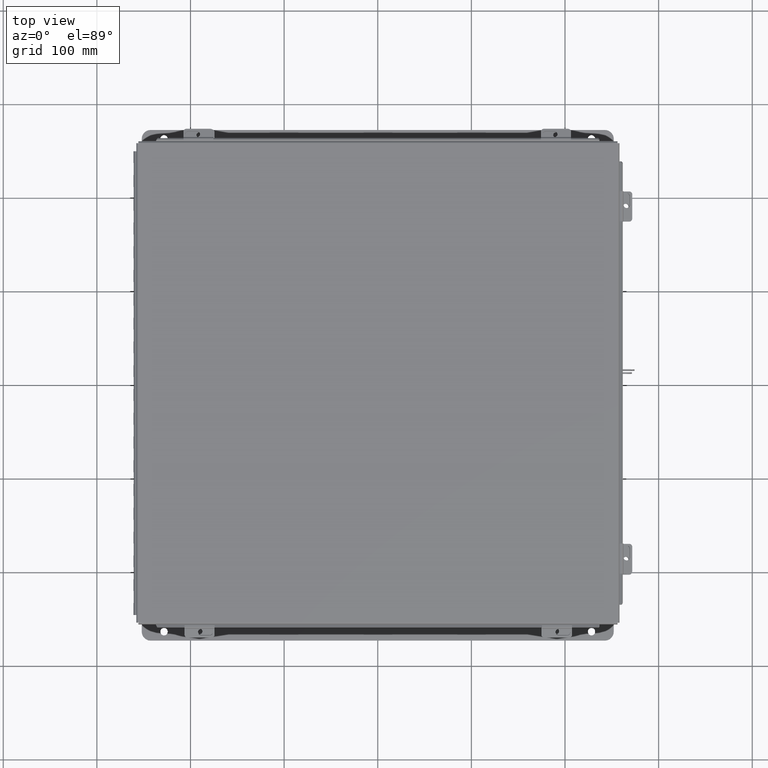
[diagram: clean part render]
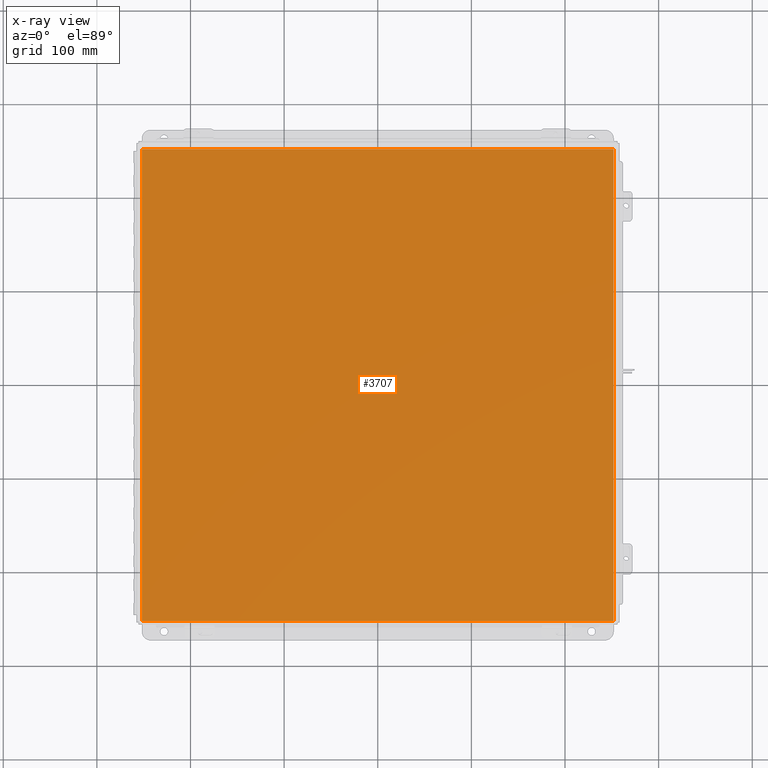
[diagram: x-ray — body ghosted, one internal face saturated and labeled with its STEP entity id]
A machine part, top view, then the same camera in x-ray: the body is ghosted and one INTERNAL B-rep face — a face not visible from any outside direction — is saturated and labeled: STEP entity #3707.
In plain terms, the highlighted planar face has unit normal (0, 0, -1).
Its self-contained STEP definition (entity closure, byte-faithful):
#121 = EDGE_LOOP ( 'NONE', ( #4920, #19492, #1981, #1905 ) ) ;
#1378 = LINE ( 'NONE', #11188, #14625 ) ;
#1847 = CARTESIAN_POINT ( 'NONE',  ( 9.912300000000001900, -9.925299999999998200, 4.268512490100411300E-017 ) ) ;
#1905 = ORIENTED_EDGE ( 'NONE', *, *, #21717, .T. ) ;
#1961 = VECTOR ( 'NONE', #3938, 39.37007874015748100 ) ;
#1981 = ORIENTED_EDGE ( 'NONE', *, *, #2704, .F. ) ;
#2704 = EDGE_CURVE ( 'NONE', #21094, #10383, #18805, .T. ) ;
#3294 = DIRECTION ( 'NONE',  ( 0.0000000000000000000, 0.0000000000000000000, -1.000000000000000000 ) ) ;
#3386 = EDGE_CURVE ( 'NONE', #4452, #17826, #5796, .T. ) ;
#3707 = ADVANCED_FACE ( 'NONE', ( #7401 ), #10126, .F. ) ;
#3938 = DIRECTION ( 'NONE',  ( -1.000000000000000000, -0.0000000000000000000, -0.0000000000000000000 ) ) ;
#3965 = EDGE_CURVE ( 'NONE', #4452, #10383, #11716, .T. ) ;
#4452 = VERTEX_POINT ( 'NONE', #14757 ) ;
#4920 = ORIENTED_EDGE ( 'NONE', *, *, #3386, .F. ) ;
#5796 = LINE ( 'NONE', #11221, #9840 ) ;
#6608 = DIRECTION ( 'NONE',  ( -0.0000000000000000000, 1.000000000000000000, -0.0000000000000000000 ) ) ;
#7335 = CARTESIAN_POINT ( 'NONE',  ( -9.912299999999998300, -9.925299999999998200, 4.268512490100411300E-017 ) ) ;
#7401 = FACE_OUTER_BOUND ( 'NONE', #121, .T. ) ;
#9064 = DIRECTION ( 'NONE',  ( -0.0000000000000000000, -1.000000000000000000, -0.0000000000000000000 ) ) ;
#9840 = VECTOR ( 'NONE', #9064, 39.37007874015748100 ) ;
#10126 = PLANE ( 'NONE',  #10168 ) ;
#10168 = AXIS2_PLACEMENT_3D ( 'NONE', #16712, #3294, #18589 ) ;
#10383 = VERTEX_POINT ( 'NONE', #13390 ) ;
#11188 = CARTESIAN_POINT ( 'NONE',  ( -9.999999999999998200, -9.925299999999998200, 0.0000000000000000000 ) ) ;
#11221 = CARTESIAN_POINT ( 'NONE',  ( 9.912300000000001900, 9.925300000000001800, 4.268512490100411300E-017 ) ) ;
#11716 = LINE ( 'NONE', #12509, #1961 ) ;
#12509 = CARTESIAN_POINT ( 'NONE',  ( -9.999999999999998200, 9.925300000000001800, 0.0000000000000000000 ) ) ;
#13390 = CARTESIAN_POINT ( 'NONE',  ( -9.912299999999998300, 9.925300000000001800, 4.268512490100411300E-017 ) ) ;
#14202 = VECTOR ( 'NONE', #6608, 39.37007874015748100 ) ;
#14625 = VECTOR ( 'NONE', #21552, 39.37007874015748100 ) ;
#14757 = CARTESIAN_POINT ( 'NONE',  ( 9.912300000000001900, 9.925299999999998200, 4.268512490100411300E-017 ) ) ;
#16712 = CARTESIAN_POINT ( 'NONE',  ( 0.0000000000000000000, 0.0000000000000000000, 0.0000000000000000000 ) ) ;
#17826 = VERTEX_POINT ( 'NONE', #1847 ) ;
#18589 = DIRECTION ( 'NONE',  ( -1.000000000000000000, 0.0000000000000000000, -0.0000000000000000000 ) ) ;
#18805 = LINE ( 'NONE', #7335, #14202 ) ;
#19492 = ORIENTED_EDGE ( 'NONE', *, *, #3965, .T. ) ;
#21094 = VERTEX_POINT ( 'NONE', #21513 ) ;
#21513 = CARTESIAN_POINT ( 'NONE',  ( -9.912299999999998300, -9.925299999999992900, 4.268512490100411300E-017 ) ) ;
#21552 = DIRECTION ( 'NONE',  ( 1.000000000000000000, 0.0000000000000000000, 0.0000000000000000000 ) ) ;
#21717 = EDGE_CURVE ( 'NONE', #21094, #17826, #1378, .T. ) ;